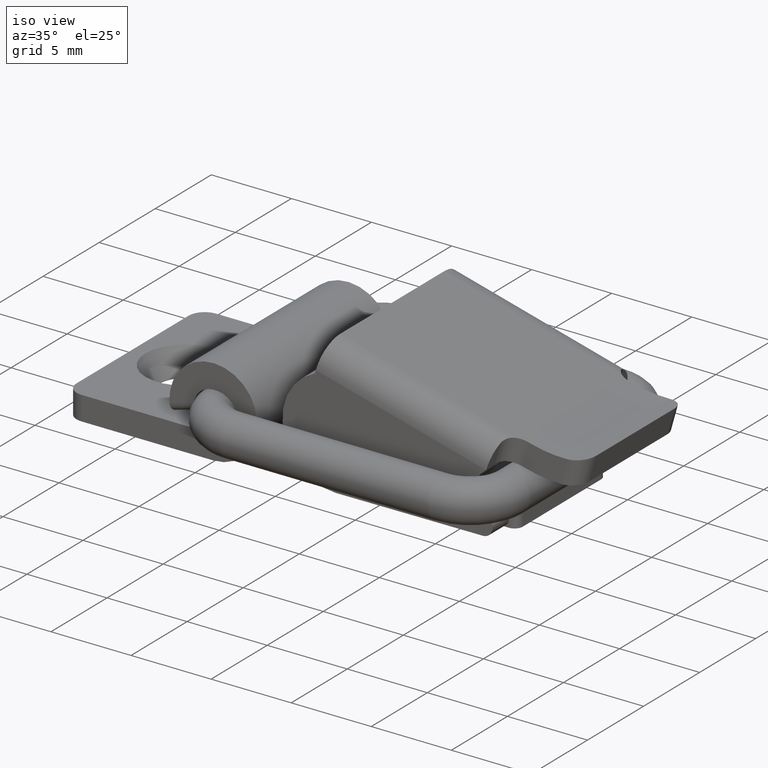
[diagram: clean part render]
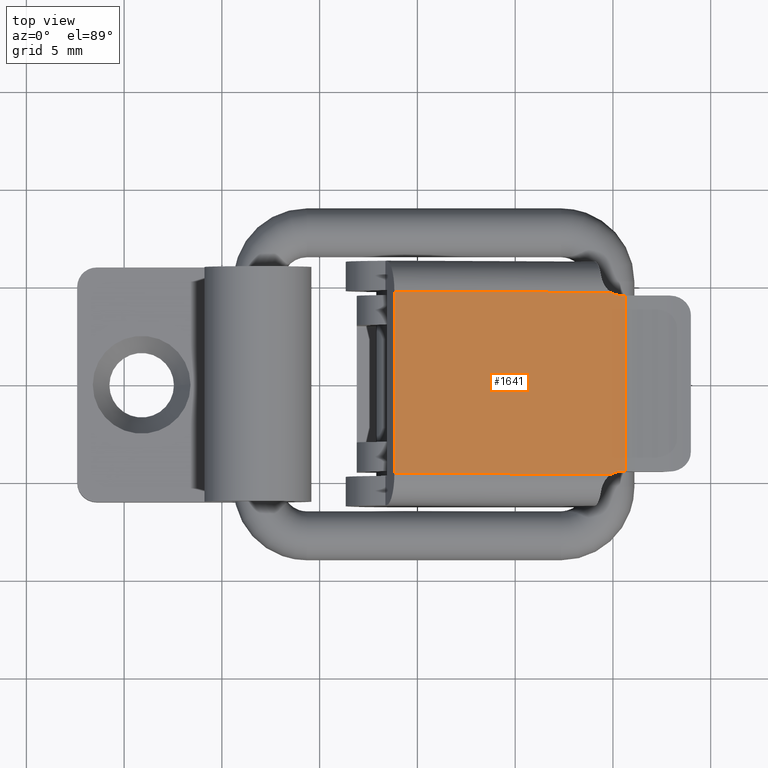
[diagram: tour spotlight — one face highlighted and labeled with its STEP entity id]
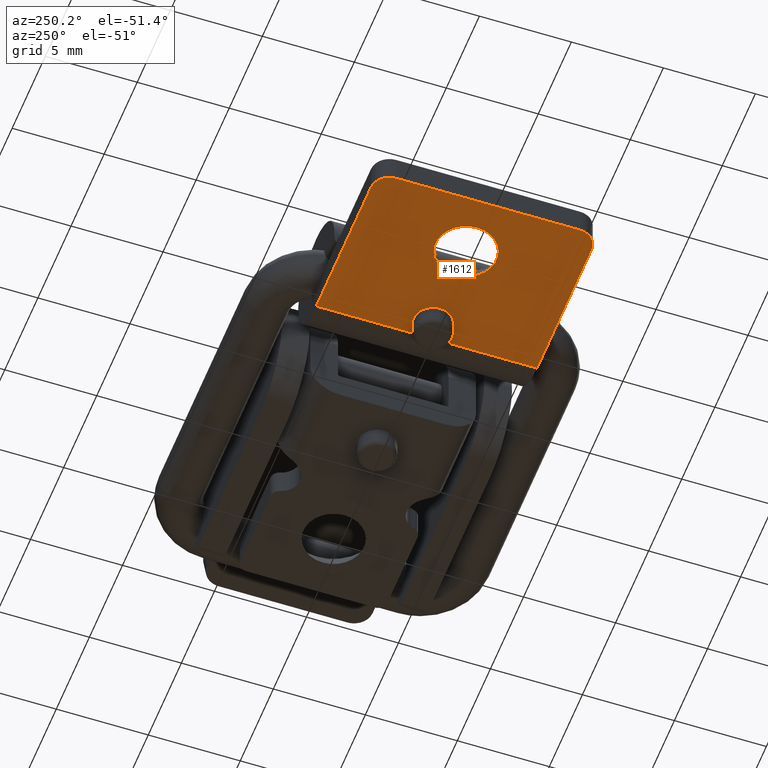
[diagram: tour spotlight — one face highlighted and labeled with its STEP entity id]
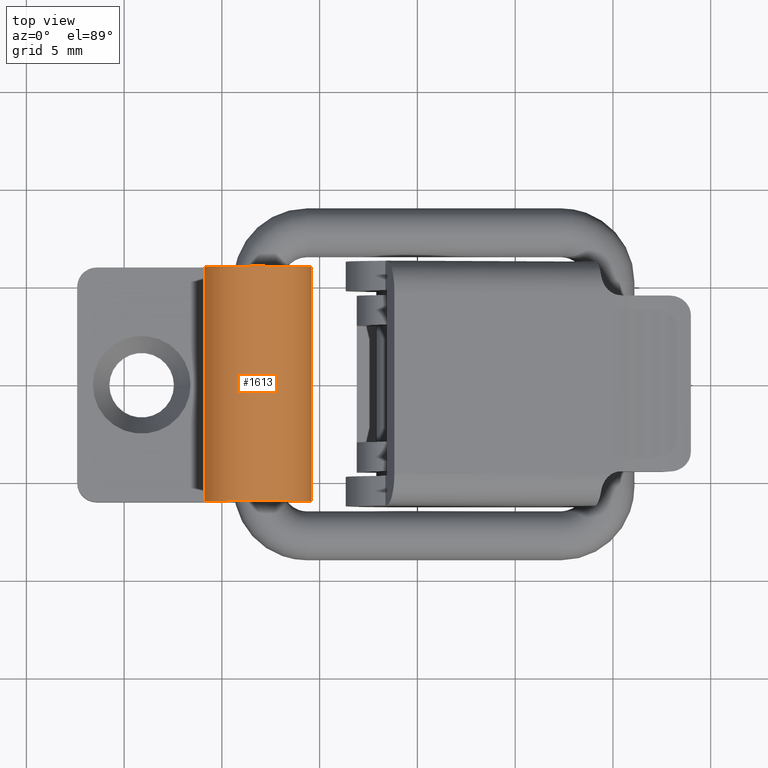
[diagram: tour spotlight — one face highlighted and labeled with its STEP entity id]
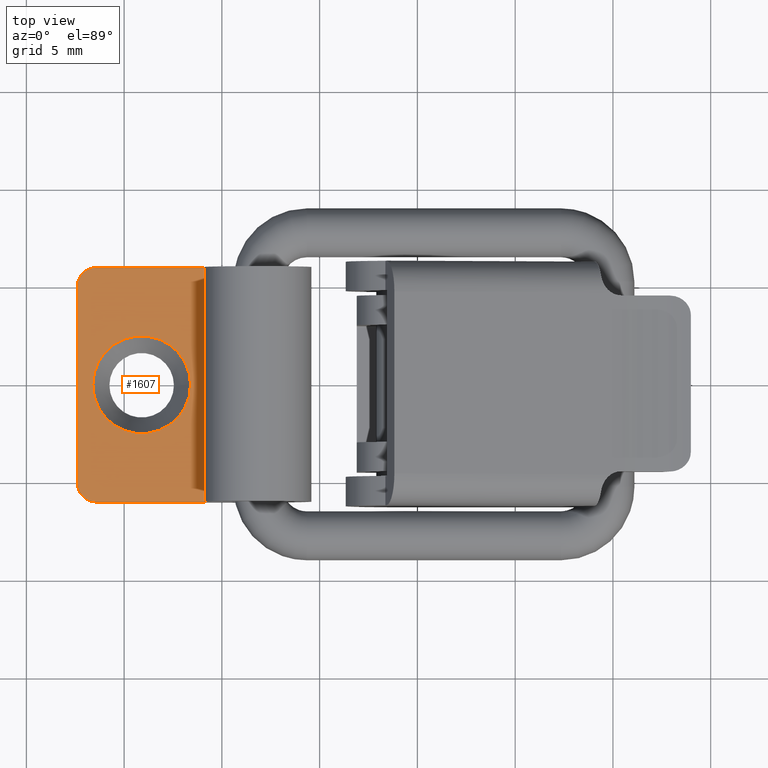
[diagram: tour spotlight — one face highlighted and labeled with its STEP entity id]
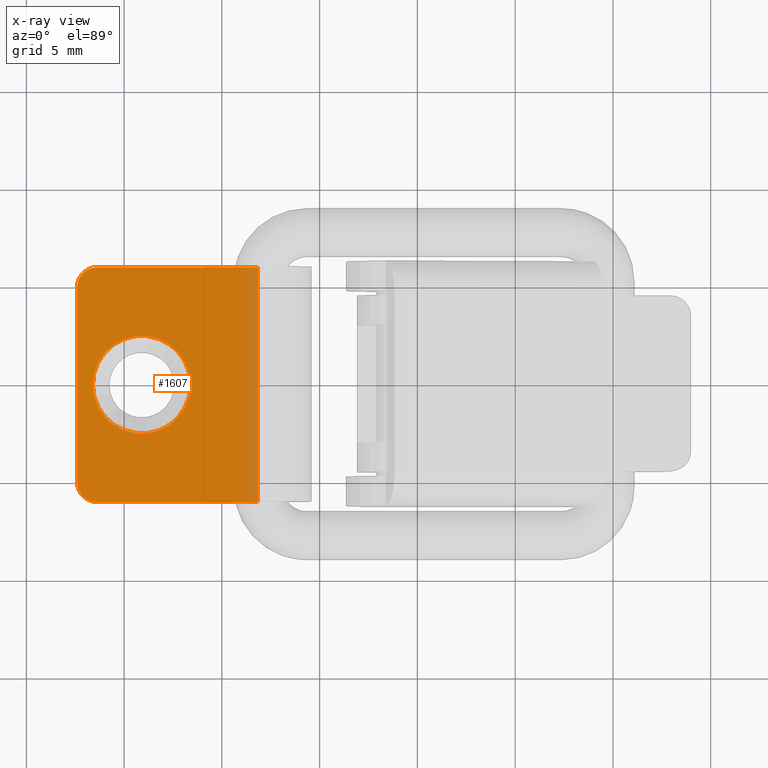
[diagram: x-ray of the same camera — body ghosted, this tour face saturated]
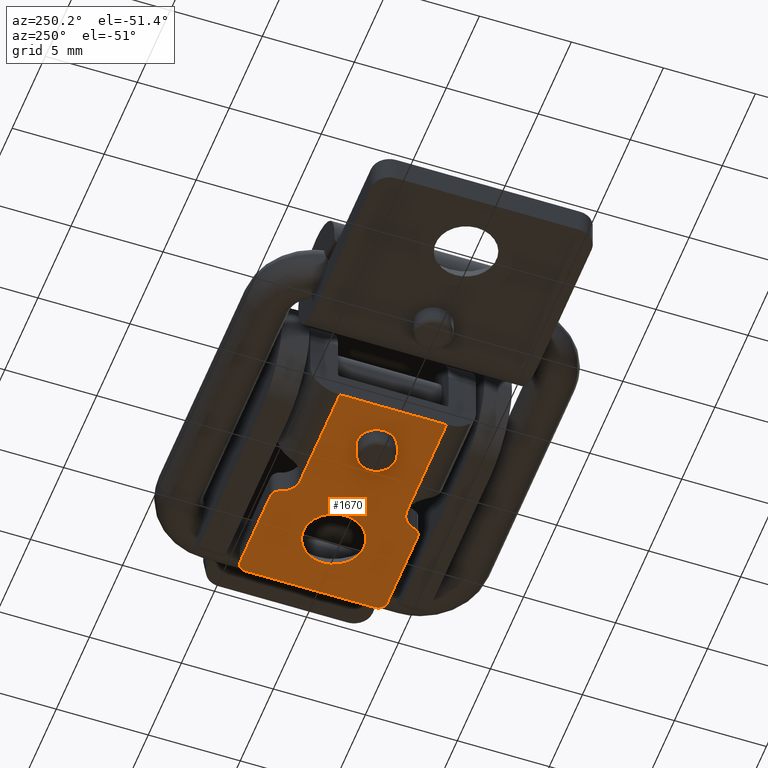
[diagram: tour spotlight — one face highlighted and labeled with its STEP entity id]
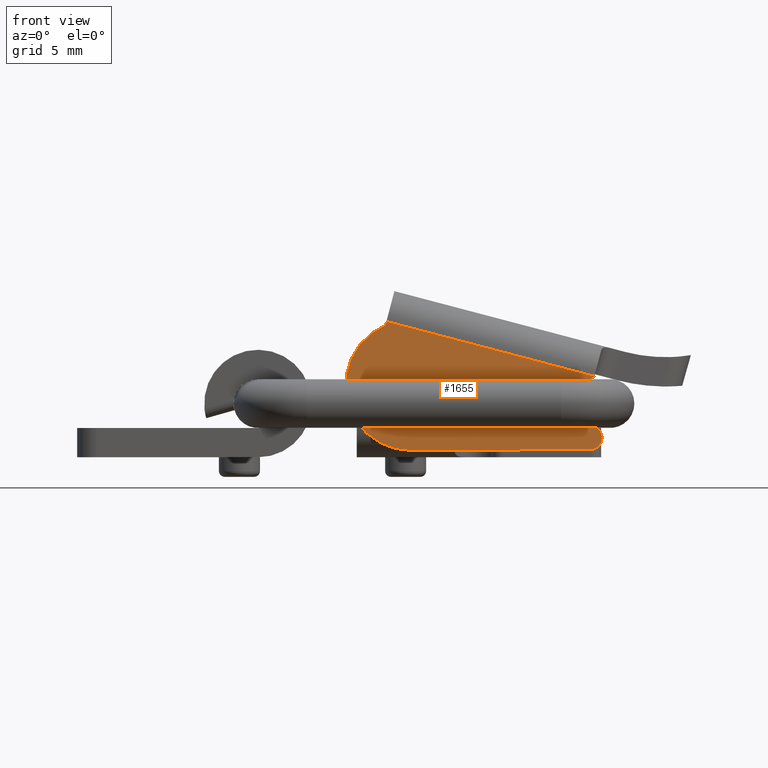
[diagram: tour spotlight — one face highlighted and labeled with its STEP entity id]
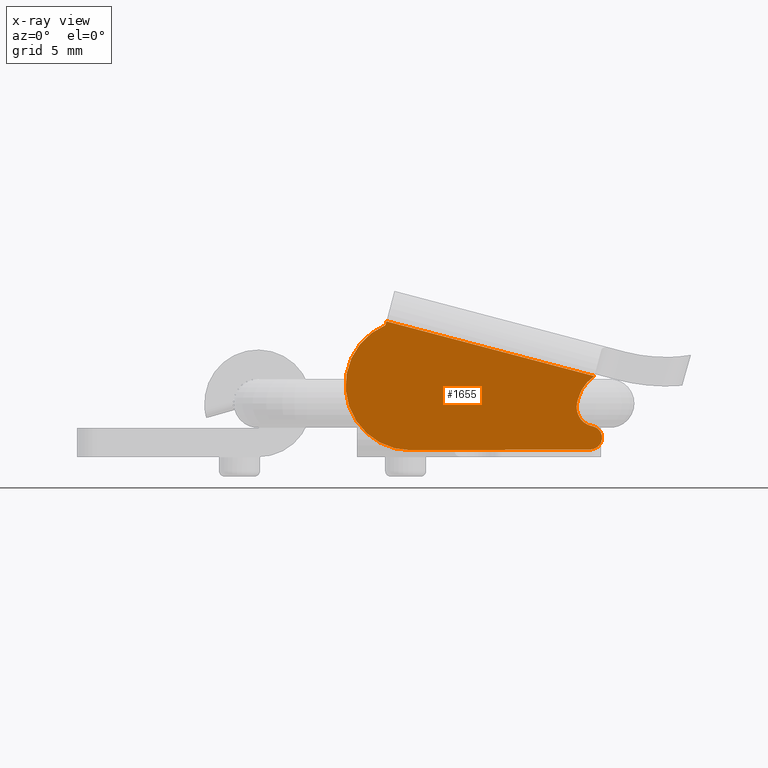
[diagram: x-ray of the same camera — body ghosted, this tour face saturated]
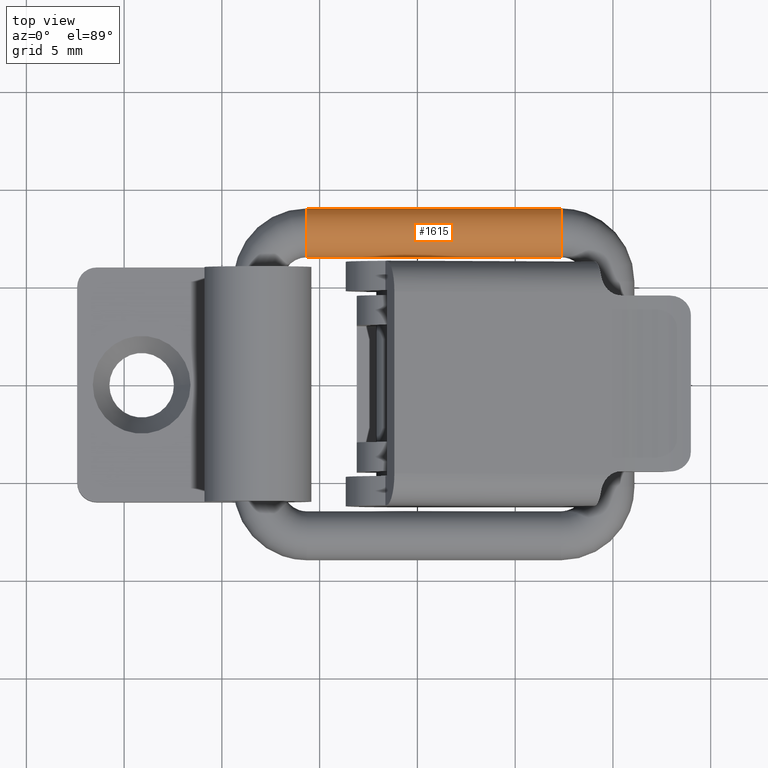
[diagram: tour spotlight — one face highlighted and labeled with its STEP entity id]
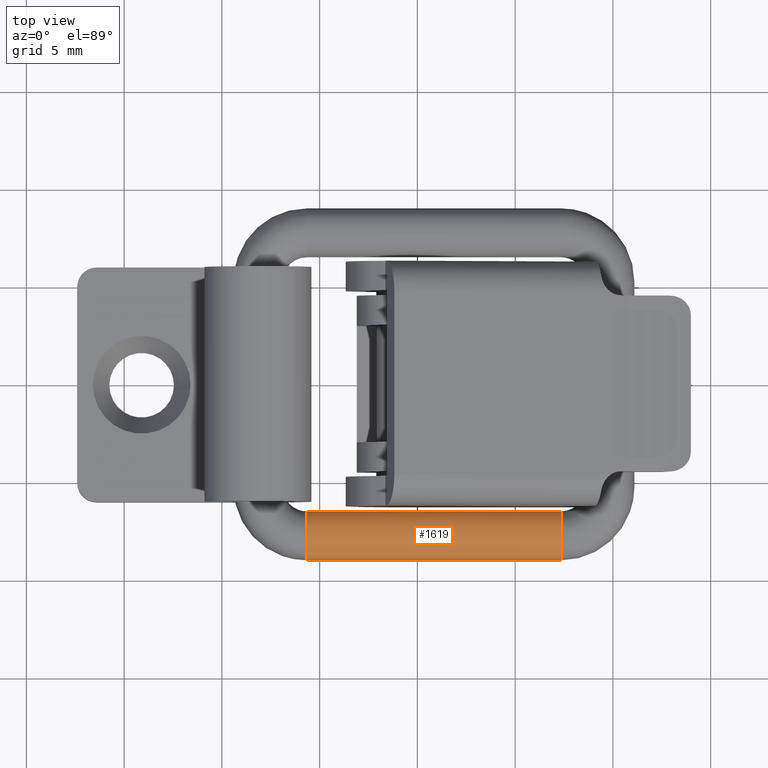
[diagram: tour spotlight — one face highlighted and labeled with its STEP entity id]
A machine part: a face-by-face anatomy tour. The part has 104 B-rep faces; the first image is the clean iso view, then the 8 largest visible faces are spotlighted one at a time (largest first), each with its STEP entity span.

Face 1 — top view, entity #1641. In plain terms, the highlighted planar face has unit normal (0.2547, -0, 0.967).
Definition (entity closure, byte-faithful):
#102=LINE('',#2687,#226);
#106=LINE('',#2720,#230);
#113=LINE('',#2777,#237);
#115=LINE('',#2781,#239);
#116=LINE('',#2783,#240);
#117=LINE('',#2784,#241);
#226=VECTOR('',#2104,9.);
#230=VECTOR('',#2116,0.200000000000008);
#237=VECTOR('',#2153,0.200000000000018);
#239=VECTOR('',#2157,11.4682519590572);
#240=VECTOR('',#2158,9.30619479163587);
#241=VECTOR('',#2159,11.4682519590573);
#371=PLANE('',#1800);
#476=FACE_OUTER_BOUND('',#594,.T.);
#594=EDGE_LOOP('',(#1326,#1327,#1328,#1329,#1330,#1331,#1332,#1333));
#706=CIRCLE('',#1788,0.999999999999999);
#711=CIRCLE('',#1795,1.);
#823=VERTEX_POINT('',#2684);
#824=VERTEX_POINT('',#2686);
#829=VERTEX_POINT('',#2718);
#831=VERTEX_POINT('',#2726);
#837=VERTEX_POINT('',#2753);
#838=VERTEX_POINT('',#2755);
#841=VERTEX_POINT('',#2780);
#842=VERTEX_POINT('',#2782);
#994=EDGE_CURVE('',#823,#824,#102,.T.);
#1002=EDGE_CURVE('',#829,#823,#106,.T.);
#1005=EDGE_CURVE('',#829,#831,#706,.F.);
#1014=EDGE_CURVE('',#837,#838,#711,.T.);
#1020=EDGE_CURVE('',#824,#837,#113,.T.);
#1022=EDGE_CURVE('',#831,#841,#115,.T.);
#1023=EDGE_CURVE('',#842,#841,#116,.T.);
#1024=EDGE_CURVE('',#842,#838,#117,.T.);
#1326=ORIENTED_EDGE('',*,*,#1022,.T.);
#1327=ORIENTED_EDGE('',*,*,#1023,.F.);
#1328=ORIENTED_EDGE('',*,*,#1024,.T.);
#1329=ORIENTED_EDGE('',*,*,#1014,.F.);
#1330=ORIENTED_EDGE('',*,*,#1020,.F.);
#1331=ORIENTED_EDGE('',*,*,#994,.F.);
#1332=ORIENTED_EDGE('',*,*,#1002,.F.);
#1333=ORIENTED_EDGE('',*,*,#1005,.T.);
#1641=ADVANCED_FACE('',(#476),#371,.T.);
#1788=AXIS2_PLACEMENT_3D('',#2727,#2124,#2125);
#1795=AXIS2_PLACEMENT_3D('',#2756,#2141,#2142);
#1800=AXIS2_PLACEMENT_3D('',#2779,#2155,#2156);
#2104=DIRECTION('',(0.,-1.,0.));
#2116=DIRECTION('',(1.,0.,0.));
#2124=DIRECTION('center_axis',(0.,0.,1.));
#2125=DIRECTION('ref_axis',(-1.,1.11022302462516E-15,5.55111512312579E-16));
#2141=DIRECTION('center_axis',(0.,0.,1.));
#2142=DIRECTION('ref_axis',(-1.,1.55431223447522E-14,5.55111512312578E-16));
#2153=DIRECTION('',(-1.,0.,0.));
#2155=DIRECTION('center_axis',(0.,0.,1.));
#2156=DIRECTION('ref_axis',(1.,0.,0.));
#2157=DIRECTION('',(-1.,2.01858731750029E-16,0.));
#2158=DIRECTION('',(0.,1.,0.));
#2159=DIRECTION('',(1.,1.4130111222502E-15,0.));
#2684=CARTESIAN_POINT('',(6.1,4.5,1.5));
#2686=CARTESIAN_POINT('',(6.1,-4.5,1.5));
#2687=CARTESIAN_POINT('',(6.1,4.5,1.5));
#2718=CARTESIAN_POINT('',(5.89999999999999,4.5,1.5));
#2720=CARTESIAN_POINT('',(4.89999999999999,4.5,1.5));
#2726=CARTESIAN_POINT('',(5.36825195905734,4.6530973958278,1.5));
#2727=CARTESIAN_POINT('Origin',(5.89999999999999,5.5,1.5));
#2753=CARTESIAN_POINT('',(5.89999999999998,-4.5,1.5));
#2755=CARTESIAN_POINT('',(5.36825195905736,-4.65309739582778,1.5));
#2756=CARTESIAN_POINT('Origin',(5.89999999999998,-5.5,1.5));
#2777=CARTESIAN_POINT('',(6.1,-4.5,1.5));
#2779=CARTESIAN_POINT('Origin',(5.47863206530747,-8.97784723465649,1.5));
#2780=CARTESIAN_POINT('',(-6.09999999999983,4.65309739581794,1.5));
#2781=CARTESIAN_POINT('',(5.18931603265373,4.65309739581794,1.5));
#2782=CARTESIAN_POINT('',(-6.09999999999998,-4.65309739581793,1.5));
#2783=CARTESIAN_POINT('',(-6.1,6.05,1.5));
#2784=CARTESIAN_POINT('',(-0.310683967346257,-4.65309739581793,1.5));

Face 2 — auxiliary view, entity #1612. In plain terms, the highlighted planar face has unit normal (-0, 0, -1).
Definition (entity closure, byte-faithful):
#64=LINE('',#2490,#188);
#69=LINE('',#2528,#193);
#75=LINE('',#2543,#199);
#77=LINE('',#2559,#201);
#78=LINE('',#2560,#202);
#188=VECTOR('',#1938,8.25);
#193=VECTOR('',#1955,8.25);
#199=VECTOR('',#1969,10.);
#201=VECTOR('',#1993,5.55278640450005);
#202=VECTOR('',#1994,5.55278640450005);
#361=PLANE('',#1737);
#408=FACE_BOUND('',#557,.T.);
#447=FACE_OUTER_BOUND('',#556,.T.);
#556=EDGE_LOOP('',(#1197,#1198,#1199,#1200,#1201,#1202,#1203,#1204));
#557=EDGE_LOOP('',(#1205));
#669=CIRCLE('',#1711,1.05);
#675=CIRCLE('',#1724,1.);
#679=CIRCLE('',#1731,1.);
#681=CIRCLE('',#1735,1.65);
#760=VERTEX_POINT('',#2449);
#761=VERTEX_POINT('',#2450);
#768=VERTEX_POINT('',#2487);
#769=VERTEX_POINT('',#2489);
#775=VERTEX_POINT('',#2525);
#776=VERTEX_POINT('',#2527);
#778=VERTEX_POINT('',#2533);
#781=VERTEX_POINT('',#2541);
#784=VERTEX_POINT('',#2554);
#911=EDGE_CURVE('',#760,#761,#669,.T.);
#921=EDGE_CURVE('',#768,#769,#64,.T.);
#931=EDGE_CURVE('',#775,#776,#69,.T.);
#934=EDGE_CURVE('',#778,#768,#675,.T.);
#939=EDGE_CURVE('',#778,#781,#75,.T.);
#942=EDGE_CURVE('',#776,#781,#679,.T.);
#944=EDGE_CURVE('',#784,#784,#681,.T.);
#946=EDGE_CURVE('',#761,#769,#77,.T.);
#947=EDGE_CURVE('',#775,#760,#78,.T.);
#1197=ORIENTED_EDGE('',*,*,#911,.T.);
#1198=ORIENTED_EDGE('',*,*,#946,.T.);
#1199=ORIENTED_EDGE('',*,*,#921,.F.);
#1200=ORIENTED_EDGE('',*,*,#934,.F.);
#1201=ORIENTED_EDGE('',*,*,#939,.T.);
#1202=ORIENTED_EDGE('',*,*,#942,.F.);
#1203=ORIENTED_EDGE('',*,*,#931,.F.);
#1204=ORIENTED_EDGE('',*,*,#947,.T.);
#1205=ORIENTED_EDGE('',*,*,#944,.T.);
#1612=ADVANCED_FACE('',(#447,#408),#361,.T.);
#1711=AXIS2_PLACEMENT_3D('',#2451,#1921,#1922);
#1724=AXIS2_PLACEMENT_3D('',#2534,#1960,#1961);
#1731=AXIS2_PLACEMENT_3D('',#2549,#1978,#1979);
#1735=AXIS2_PLACEMENT_3D('',#2555,#1986,#1987);
#1737=AXIS2_PLACEMENT_3D('',#2558,#1991,#1992);
#1921=DIRECTION('center_axis',(6.25371292798738E-21,1.,0.));
#1922=DIRECTION('ref_axis',(-1.,0.,0.));
#1938=DIRECTION('',(1.,-6.25371292798738E-21,0.));
#1955=DIRECTION('',(-1.,6.25371292798738E-21,0.));
#1960=DIRECTION('center_axis',(6.25371292798738E-21,1.,0.));
#1961=DIRECTION('ref_axis',(-0.707106781186548,0.,0.707106781186547));
#1969=DIRECTION('',(0.,0.,-1.));
#1978=DIRECTION('center_axis',(6.25371292798738E-21,1.,0.));
#1979=DIRECTION('ref_axis',(-0.707106781186548,0.,-0.707106781186547));
#1986=DIRECTION('center_axis',(6.25371292798738E-21,1.,0.));
#1987=DIRECTION('ref_axis',(1.,-1.69967494438815E-16,0.));
#1991=DIRECTION('center_axis',(-6.25371292798738E-21,-1.,0.));
#1992=DIRECTION('ref_axis',(1.,-6.25371292798738E-21,0.));
#1993=DIRECTION('',(0.,0.,1.));
#1994=DIRECTION('',(0.,0.,1.));
#2449=CARTESIAN_POINT('',(9.25,0.,-0.447213595499951));
#2450=CARTESIAN_POINT('',(9.25,0.,0.447213595499951));
#2451=CARTESIAN_POINT('Origin',(8.3,0.,0.));
#2487=CARTESIAN_POINT('',(1.,-6.25371292798738E-21,6.));
#2489=CARTESIAN_POINT('',(9.25,-5.78468445838833E-20,6.));
#2490=CARTESIAN_POINT('',(0.,0.,6.));
#2525=CARTESIAN_POINT('',(9.25,-5.78468445838833E-20,-6.));
#2527=CARTESIAN_POINT('',(1.,-6.25371292798738E-21,-6.));
#2528=CARTESIAN_POINT('',(0.,0.,-6.));
#2533=CARTESIAN_POINT('',(0.,0.,5.));
#2534=CARTESIAN_POINT('Origin',(1.,0.,5.));
#2541=CARTESIAN_POINT('',(0.,0.,-5.));
#2543=CARTESIAN_POINT('',(0.,0.,0.));
#2549=CARTESIAN_POINT('Origin',(1.,0.,-5.));
#2554=CARTESIAN_POINT('',(1.65,2.80446365824044E-16,2.02066721859313E-16));
#2555=CARTESIAN_POINT('Origin',(3.3,0.,0.));
#2558=CARTESIAN_POINT('Origin',(0.,0.,0.));
#2559=CARTESIAN_POINT('',(9.25,0.,0.));
#2560=CARTESIAN_POINT('',(9.25,0.,0.));

Face 3 — top view, entity #1613. In plain terms, the highlighted cylindrical surface (partial cylindrical patch) has radius 2.75 mm, axis along (0, -1, -0).
Definition (entity closure, byte-faithful):
#48=B_SPLINE_CURVE_WITH_KNOTS('',3,(#2471,#2472,#2473,#2474,#2475,#2476,
#2477,#2478,#2479,#2480),.UNSPECIFIED.,.F.,.F.,(4,2,2,2,4),(0.0767706745280909,
0.0957377000465498,0.114704725565009,0.133543229104475,0.152381732643942),
 .UNSPECIFIED.);
#50=B_SPLINE_CURVE_WITH_KNOTS('',3,(#2512,#2513,#2514,#2515,#2516,#2517,
#2518,#2519,#2520,#2521),.UNSPECIFIED.,.F.,.F.,(4,2,2,2,4),(0.304763465287883,
0.323601968827349,0.342440472366816,0.361407497885275,0.380374523403734),
 .UNSPECIFIED.);
#59=LINE('',#2454,#183);
#76=LINE('',#2557,#200);
#77=LINE('',#2559,#201);
#78=LINE('',#2560,#202);
#183=VECTOR('',#1927,0.894427190999902);
#200=VECTOR('',#1990,11.);
#201=VECTOR('',#1993,5.55278640450005);
#202=VECTOR('',#1994,5.55278640450005);
#314=CYLINDRICAL_SURFACE('',#1738,2.75);
#448=FACE_OUTER_BOUND('',#558,.T.);
#558=EDGE_LOOP('',(#1206,#1207,#1208,#1209,#1210,#1211,#1212,#1213));
#672=CIRCLE('',#1717,2.75);
#674=CIRCLE('',#1722,2.75);
#760=VERTEX_POINT('',#2449);
#761=VERTEX_POINT('',#2450);
#764=VERTEX_POINT('',#2468);
#765=VERTEX_POINT('',#2470);
#769=VERTEX_POINT('',#2489);
#773=VERTEX_POINT('',#2510);
#774=VERTEX_POINT('',#2511);
#775=VERTEX_POINT('',#2525);
#913=EDGE_CURVE('',#760,#761,#59,.T.);
#916=EDGE_CURVE('',#764,#765,#48,.T.);
#922=EDGE_CURVE('',#769,#764,#672,.T.);
#927=EDGE_CURVE('',#773,#774,#50,.T.);
#930=EDGE_CURVE('',#774,#775,#674,.T.);
#945=EDGE_CURVE('',#773,#765,#76,.T.);
#946=EDGE_CURVE('',#761,#769,#77,.T.);
#947=EDGE_CURVE('',#775,#760,#78,.T.);
#1206=ORIENTED_EDGE('',*,*,#916,.F.);
#1207=ORIENTED_EDGE('',*,*,#922,.F.);
#1208=ORIENTED_EDGE('',*,*,#946,.F.);
#1209=ORIENTED_EDGE('',*,*,#913,.F.);
#1210=ORIENTED_EDGE('',*,*,#947,.F.);
#1211=ORIENTED_EDGE('',*,*,#930,.F.);
#1212=ORIENTED_EDGE('',*,*,#927,.F.);
#1213=ORIENTED_EDGE('',*,*,#945,.T.);
#1613=ADVANCED_FACE('',(#448),#314,.T.);
#1717=AXIS2_PLACEMENT_3D('',#2491,#1939,#1940);
#1722=AXIS2_PLACEMENT_3D('',#2526,#1953,#1954);
#1738=AXIS2_PLACEMENT_3D('',#2561,#1995,#1996);
#1927=DIRECTION('',(0.,0.,1.));
#1939=DIRECTION('center_axis',(0.,0.,1.));
#1940=DIRECTION('ref_axis',(-0.890723542830246,-0.454545454545455,0.));
#1953=DIRECTION('center_axis',(0.,0.,-1.));
#1954=DIRECTION('ref_axis',(-0.890723542830246,-0.454545454545455,0.));
#1990=DIRECTION('',(0.,0.,1.));
#1993=DIRECTION('',(0.,0.,1.));
#1994=DIRECTION('',(0.,0.,1.));
#1995=DIRECTION('center_axis',(0.,0.,1.));
#1996=DIRECTION('ref_axis',(-0.890723542830246,-0.454545454545455,0.));
#2449=CARTESIAN_POINT('',(9.25,0.,-0.447213595499951));
#2450=CARTESIAN_POINT('',(9.25,0.,0.447213595499951));
#2454=CARTESIAN_POINT('',(9.25,0.,0.));
#2468=CARTESIAN_POINT('',(6.51198399613561,2.49354656839411,6.));
#2470=CARTESIAN_POINT('',(6.60424868893541,2.,5.5));
#2471=CARTESIAN_POINT('Ctrl Pts',(6.51198399613561,2.49354656839411,6.));
#2472=CARTESIAN_POINT('Ctrl Pts',(6.51787994617387,2.4305986660726,6.));
#2473=CARTESIAN_POINT('Ctrl Pts',(6.52656771340076,2.36364514729082,5.98767063874012));
#2474=CARTESIAN_POINT('Ctrl Pts',(6.54677546671875,2.24114774860172,5.93679155283717));
#2475=CARTESIAN_POINT('Ctrl Pts',(6.55817122777565,2.18558942311772,5.89822734678773));
#2476=CARTESIAN_POINT('Ctrl Pts',(6.57788760812646,2.09862470758109,5.80918214845664));
#2477=CARTESIAN_POINT('Ctrl Pts',(6.58749927554508,2.06134825711493,5.75296695007312));
#2478=CARTESIAN_POINT('Ctrl Pts',(6.60073872249317,2.01205283831684,5.62977292063407));
#2479=CARTESIAN_POINT('Ctrl Pts',(6.60424868893541,2.,5.56279501179822));
#2480=CARTESIAN_POINT('Ctrl Pts',(6.60424868893541,2.,5.5));
#2489=CARTESIAN_POINT('',(9.25,-5.78468445838833E-20,6.));
#2491=CARTESIAN_POINT('Origin',(9.25,2.75,6.));
#2510=CARTESIAN_POINT('',(6.60424868893541,2.,-5.5));
#2511=CARTESIAN_POINT('',(6.51198399613561,2.49354656839411,-6.));
#2512=CARTESIAN_POINT('Ctrl Pts',(6.60424868893541,2.,-5.5));
#2513=CARTESIAN_POINT('Ctrl Pts',(6.60424868893541,2.,-5.56279501179822));
#2514=CARTESIAN_POINT('Ctrl Pts',(6.60073872249317,2.01205283831684,-5.62977292063407));
#2515=CARTESIAN_POINT('Ctrl Pts',(6.58749927554508,2.06134825711493,-5.75296695007312));
#2516=CARTESIAN_POINT('Ctrl Pts',(6.57788760812646,2.09862470758109,-5.80918214845664));
#2517=CARTESIAN_POINT('Ctrl Pts',(6.55817122777565,2.18558942311772,-5.89822734678773));
#2518=CARTESIAN_POINT('Ctrl Pts',(6.54677546671875,2.24114774860172,-5.93679155283717));
#2519=CARTESIAN_POINT('Ctrl Pts',(6.52656771340076,2.36364514729082,-5.98767063874012));
#2520=CARTESIAN_POINT('Ctrl Pts',(6.51787994617387,2.4305986660726,-6.));
#2521=CARTESIAN_POINT('Ctrl Pts',(6.51198399613561,2.49354656839411,-6.));
#2525=CARTESIAN_POINT('',(9.25,-5.78468445838833E-20,-6.));
#2526=CARTESIAN_POINT('Origin',(9.25,2.75,-6.));
#2557=CARTESIAN_POINT('',(6.60424868893541,2.,0.));
#2559=CARTESIAN_POINT('',(9.25,0.,0.));
#2560=CARTESIAN_POINT('',(9.25,0.,0.));
#2561=CARTESIAN_POINT('Origin',(9.25,2.75,0.));

Face 4 — top view, entity #1607. An x-ray twin of the same camera follows (body ghosted, this face saturated) — the face is partly hidden behind the body. In plain terms, the highlighted planar face has unit normal (0, -0, 1).
Definition (entity closure, byte-faithful):
#62=LINE('',#2486,#186);
#66=LINE('',#2508,#190);
#71=LINE('',#2531,#195);
#73=LINE('',#2540,#197);
#186=VECTOR('',#1936,8.25);
#190=VECTOR('',#1946,12.);
#195=VECTOR('',#1957,8.25);
#197=VECTOR('',#1967,10.);
#359=PLANE('',#1727);
#405=FACE_BOUND('',#549,.T.);
#442=FACE_OUTER_BOUND('',#548,.T.);
#548=EDGE_LOOP('',(#1178,#1179,#1180,#1181,#1182,#1183));
#549=EDGE_LOOP('',(#1184));
#676=CIRCLE('',#1725,1.);
#677=CIRCLE('',#1728,1.);
#678=CIRCLE('',#1729,2.5);
#766=VERTEX_POINT('',#2483);
#767=VERTEX_POINT('',#2485);
#772=VERTEX_POINT('',#2506);
#777=VERTEX_POINT('',#2529);
#779=VERTEX_POINT('',#2535);
#780=VERTEX_POINT('',#2539);
#782=VERTEX_POINT('',#2546);
#919=EDGE_CURVE('',#766,#767,#62,.T.);
#926=EDGE_CURVE('',#766,#772,#66,.T.);
#933=EDGE_CURVE('',#777,#772,#71,.T.);
#935=EDGE_CURVE('',#767,#779,#676,.T.);
#937=EDGE_CURVE('',#780,#779,#73,.T.);
#940=EDGE_CURVE('',#780,#777,#677,.T.);
#941=EDGE_CURVE('',#782,#782,#678,.T.);
#1178=ORIENTED_EDGE('',*,*,#935,.F.);
#1179=ORIENTED_EDGE('',*,*,#919,.F.);
#1180=ORIENTED_EDGE('',*,*,#926,.T.);
#1181=ORIENTED_EDGE('',*,*,#933,.F.);
#1182=ORIENTED_EDGE('',*,*,#940,.F.);
#1183=ORIENTED_EDGE('',*,*,#937,.T.);
#1184=ORIENTED_EDGE('',*,*,#941,.T.);
#1607=ADVANCED_FACE('',(#442,#405),#359,.T.);
#1725=AXIS2_PLACEMENT_3D('',#2536,#1962,#1963);
#1727=AXIS2_PLACEMENT_3D('',#2544,#1970,#1971);
#1728=AXIS2_PLACEMENT_3D('',#2545,#1972,#1973);
#1729=AXIS2_PLACEMENT_3D('',#2547,#1974,#1975);
#1936=DIRECTION('',(-1.,1.69967494438815E-16,0.));
#1946=DIRECTION('',(0.,0.,-1.));
#1957=DIRECTION('',(1.,-2.44883762239819E-16,0.));
#1962=DIRECTION('center_axis',(-1.69967494438815E-16,-1.,0.));
#1963=DIRECTION('ref_axis',(-0.707106781186548,0.,0.707106781186547));
#1967=DIRECTION('',(0.,0.,1.));
#1970=DIRECTION('center_axis',(1.69967494438815E-16,1.,0.));
#1971=DIRECTION('ref_axis',(-1.,1.77635683940025E-16,0.));
#1972=DIRECTION('center_axis',(-1.69967494438815E-16,-1.,0.));
#1973=DIRECTION('ref_axis',(-0.707106781186548,0.,-0.707106781186547));
#1974=DIRECTION('center_axis',(-1.69967494438815E-16,-1.,0.));
#1975=DIRECTION('ref_axis',(1.,-1.69967494438815E-16,0.));
#2483=CARTESIAN_POINT('',(9.25,1.5,6.));
#2485=CARTESIAN_POINT('',(1.,1.5,6.));
#2486=CARTESIAN_POINT('',(11.6994897427832,1.5,6.));
#2506=CARTESIAN_POINT('',(9.25,1.5,-6.));
#2508=CARTESIAN_POINT('',(9.25,1.5,0.));
#2529=CARTESIAN_POINT('',(1.,1.5,-6.));
#2531=CARTESIAN_POINT('',(6.80051025721683,1.5,-6.));
#2535=CARTESIAN_POINT('',(0.,1.5,5.));
#2536=CARTESIAN_POINT('Origin',(1.,1.5,5.));
#2539=CARTESIAN_POINT('',(0.,1.5,-5.));
#2540=CARTESIAN_POINT('',(0.,1.5,0.));
#2544=CARTESIAN_POINT('Origin',(11.6994897427832,1.5,0.));
#2545=CARTESIAN_POINT('Origin',(1.,1.5,-5.));
#2546=CARTESIAN_POINT('',(5.8,1.5,0.));
#2547=CARTESIAN_POINT('Origin',(3.3,1.5,0.));

Face 5 — auxiliary view, entity #1670. In plain terms, the highlighted planar face has unit normal (-0, -0, -1).
Definition (entity closure, byte-faithful):
#139=LINE('',#2876,#263);
#142=LINE('',#2882,#266);
#143=LINE('',#2886,#267);
#144=LINE('',#2892,#268);
#145=LINE('',#2894,#269);
#146=LINE('',#2896,#270);
#263=VECTOR('',#2275,4.55517735016204);
#266=VECTOR('',#2280,7.);
#267=VECTOR('',#2283,4.55517735016204);
#268=VECTOR('',#2288,6.);
#269=VECTOR('',#2289,5.80619479163588);
#270=VECTOR('',#2290,6.00000000000001);
#386=PLANE('',#1848);
#422=FACE_BOUND('',#629,.T.);
#423=FACE_BOUND('',#630,.T.);
#505=FACE_OUTER_BOUND('',#628,.T.);
#628=EDGE_LOOP('',(#1443,#1444,#1445,#1446,#1447,#1448,#1449,#1450,#1451,
#1452,#1453,#1454));
#629=EDGE_LOOP('',(#1455));
#630=EDGE_LOOP('',(#1456));
#726=CIRCLE('',#1837,1.05);
#729=CIRCLE('',#1843,1.65);
#730=CIRCLE('',#1845,0.5);
#732=CIRCLE('',#1849,0.5);
#733=CIRCLE('',#1850,0.5);
#734=CIRCLE('',#1851,1.);
#735=CIRCLE('',#1852,1.);
#736=CIRCLE('',#1853,0.5);
#857=VERTEX_POINT('',#2854);
#860=VERTEX_POINT('',#2863);
#861=VERTEX_POINT('',#2866);
#862=VERTEX_POINT('',#2867);
#865=VERTEX_POINT('',#2875);
#867=VERTEX_POINT('',#2881);
#868=VERTEX_POINT('',#2883);
#869=VERTEX_POINT('',#2885);
#870=VERTEX_POINT('',#2887);
#871=VERTEX_POINT('',#2889);
#872=VERTEX_POINT('',#2891);
#873=VERTEX_POINT('',#2893);
#874=VERTEX_POINT('',#2895);
#875=VERTEX_POINT('',#2897);
#1056=EDGE_CURVE('',#857,#857,#726,.T.);
#1059=EDGE_CURVE('',#860,#860,#729,.T.);
#1060=EDGE_CURVE('',#861,#862,#730,.T.);
#1064=EDGE_CURVE('',#862,#865,#139,.T.);
#1067=EDGE_CURVE('',#867,#861,#142,.T.);
#1068=EDGE_CURVE('',#868,#867,#732,.T.);
#1069=EDGE_CURVE('',#869,#868,#143,.T.);
#1070=EDGE_CURVE('',#870,#869,#733,.T.);
#1071=EDGE_CURVE('',#871,#870,#734,.T.);
#1072=EDGE_CURVE('',#871,#872,#144,.T.);
#1073=EDGE_CURVE('',#873,#872,#145,.T.);
#1074=EDGE_CURVE('',#873,#874,#146,.T.);
#1075=EDGE_CURVE('',#875,#874,#735,.T.);
#1076=EDGE_CURVE('',#865,#875,#736,.T.);
#1443=ORIENTED_EDGE('',*,*,#1060,.F.);
#1444=ORIENTED_EDGE('',*,*,#1067,.F.);
#1445=ORIENTED_EDGE('',*,*,#1068,.F.);
#1446=ORIENTED_EDGE('',*,*,#1069,.F.);
#1447=ORIENTED_EDGE('',*,*,#1070,.F.);
#1448=ORIENTED_EDGE('',*,*,#1071,.F.);
#1449=ORIENTED_EDGE('',*,*,#1072,.T.);
#1450=ORIENTED_EDGE('',*,*,#1073,.F.);
#1451=ORIENTED_EDGE('',*,*,#1074,.T.);
#1452=ORIENTED_EDGE('',*,*,#1075,.F.);
#1453=ORIENTED_EDGE('',*,*,#1076,.F.);
#1454=ORIENTED_EDGE('',*,*,#1064,.F.);
#1455=ORIENTED_EDGE('',*,*,#1056,.T.);
#1456=ORIENTED_EDGE('',*,*,#1059,.T.);
#1670=ADVANCED_FACE('',(#505,#422,#423),#386,.T.);
#1837=AXIS2_PLACEMENT_3D('',#2855,#2251,#2252);
#1843=AXIS2_PLACEMENT_3D('',#2864,#2263,#2264);
#1845=AXIS2_PLACEMENT_3D('',#2868,#2267,#2268);
#1848=AXIS2_PLACEMENT_3D('',#2880,#2278,#2279);
#1849=AXIS2_PLACEMENT_3D('',#2884,#2281,#2282);
#1850=AXIS2_PLACEMENT_3D('',#2888,#2284,#2285);
#1851=AXIS2_PLACEMENT_3D('',#2890,#2286,#2287);
#1852=AXIS2_PLACEMENT_3D('',#2898,#2291,#2292);
#1853=AXIS2_PLACEMENT_3D('',#2899,#2293,#2294);
#2251=DIRECTION('center_axis',(0.,0.,-1.));
#2252=DIRECTION('ref_axis',(1.,0.,0.));
#2263=DIRECTION('center_axis',(0.,0.,-1.));
#2264=DIRECTION('ref_axis',(-1.,0.,0.));
#2267=DIRECTION('center_axis',(0.,0.,-1.));
#2268=DIRECTION('ref_axis',(0.707106781186548,-0.707106781186548,0.));
#2275=DIRECTION('',(-1.,0.,0.));
#2278=DIRECTION('center_axis',(0.,0.,1.));
#2279=DIRECTION('ref_axis',(1.,0.,0.));
#2280=DIRECTION('',(0.,-1.,0.));
#2281=DIRECTION('center_axis',(0.,0.,-1.));
#2282=DIRECTION('ref_axis',(0.707106781186548,0.707106781186547,0.));
#2283=DIRECTION('',(1.,0.,0.));
#2284=DIRECTION('center_axis',(0.,0.,-1.));
#2285=DIRECTION('ref_axis',(0.,-1.,0.));
#2286=DIRECTION('center_axis',(0.,0.,1.));
#2287=DIRECTION('ref_axis',(0.707106781186548,-0.707106781186547,0.));
#2288=DIRECTION('',(-1.,-6.66133814775094E-16,0.));
#2289=DIRECTION('',(7.40148683083437E-16,1.,0.));
#2290=DIRECTION('',(1.,0.,0.));
#2291=DIRECTION('center_axis',(0.,0.,1.));
#2292=DIRECTION('ref_axis',(0.707106781186548,0.707106781186547,0.));
#2293=DIRECTION('center_axis',(0.,0.,-1.));
#2294=DIRECTION('ref_axis',(0.,1.,0.));
#2854=CARTESIAN_POINT('',(-2.7,0.,1.5));
#2855=CARTESIAN_POINT('Origin',(-3.75,0.,1.5));
#2863=CARTESIAN_POINT('',(4.4,-2.02066721859313E-16,1.5));
#2864=CARTESIAN_POINT('Origin',(2.75,0.,1.5));
#2866=CARTESIAN_POINT('',(6.25,-3.5,1.5));
#2867=CARTESIAN_POINT('',(5.75,-4.,1.5));
#2868=CARTESIAN_POINT('Origin',(5.75,-3.5,1.5));
#2875=CARTESIAN_POINT('',(1.19482264983796,-4.,1.5));
#2876=CARTESIAN_POINT('',(1.25,-4.,1.5));
#2880=CARTESIAN_POINT('Origin',(-3.75,5.87587502168392,1.5));
#2881=CARTESIAN_POINT('',(6.25,3.5,1.5));
#2882=CARTESIAN_POINT('',(6.25,-4.,1.5));
#2883=CARTESIAN_POINT('',(5.75,4.,1.5));
#2884=CARTESIAN_POINT('Origin',(5.75,3.5,1.5));
#2885=CARTESIAN_POINT('',(1.19482264983796,4.,1.5));
#2886=CARTESIAN_POINT('',(6.25,4.,1.5));
#2887=CARTESIAN_POINT('',(0.713215099891976,3.63436579860598,1.5));
#2888=CARTESIAN_POINT('Origin',(1.19482264983796,3.5,1.5));
#2889=CARTESIAN_POINT('',(-0.250000000000004,2.90309739581794,1.5));
#2890=CARTESIAN_POINT('Origin',(-0.25,3.90309739581794,1.5));
#2891=CARTESIAN_POINT('',(-6.25,2.90309739581793,1.5));
#2892=CARTESIAN_POINT('',(-2.5,2.90309739581794,1.5));
#2893=CARTESIAN_POINT('',(-6.25000000000001,-2.90309739581795,1.5));
#2894=CARTESIAN_POINT('',(-6.25,6.5,1.5));
#2895=CARTESIAN_POINT('',(-0.250000000000003,-2.90309739581795,1.5));
#2896=CARTESIAN_POINT('',(-5.00000000000001,-2.90309739581795,1.5));
#2897=CARTESIAN_POINT('',(0.713215099891975,-3.63436579860598,1.5));
#2898=CARTESIAN_POINT('Origin',(-0.25,-3.90309739581795,1.5));
#2899=CARTESIAN_POINT('Origin',(1.19482264983796,-3.5,1.5));

Face 6 — front view, entity #1655. An x-ray twin of the same camera follows (body ghosted, this face saturated) — the face is partly hidden behind the body. In plain terms, the highlighted planar face has unit normal (0, -1, -0).
Definition (entity closure, byte-faithful):
#88=LINE('',#2617,#212);
#131=LINE('',#2824,#255);
#132=LINE('',#2827,#256);
#133=LINE('',#2831,#257);
#212=VECTOR('',#2058,0.173474972221287);
#255=VECTOR('',#2211,11.);
#256=VECTOR('',#2214,0.203097395817931);
#257=VECTOR('',#2217,9.17734519377148);
#379=PLANE('',#1820);
#490=FACE_OUTER_BOUND('',#608,.T.);
#608=EDGE_LOOP('',(#1398,#1399,#1400,#1401,#1402,#1403,#1404,#1405));
#692=CIRCLE('',#1762,0.999999999999999);
#694=CIRCLE('',#1766,2.);
#720=CIRCLE('',#1821,3.32903819967745);
#721=CIRCLE('',#1822,0.6);
#799=VERTEX_POINT('',#2604);
#800=VERTEX_POINT('',#2605);
#804=VERTEX_POINT('',#2615);
#805=VERTEX_POINT('',#2619);
#849=VERTEX_POINT('',#2818);
#850=VERTEX_POINT('',#2826);
#851=VERTEX_POINT('',#2828);
#852=VERTEX_POINT('',#2830);
#963=EDGE_CURVE('',#799,#800,#692,.F.);
#969=EDGE_CURVE('',#800,#804,#88,.T.);
#970=EDGE_CURVE('',#804,#805,#694,.F.);
#1044=EDGE_CURVE('',#805,#849,#131,.T.);
#1045=EDGE_CURVE('',#850,#849,#132,.T.);
#1046=EDGE_CURVE('',#851,#850,#720,.T.);
#1047=EDGE_CURVE('',#852,#851,#133,.T.);
#1048=EDGE_CURVE('',#799,#852,#721,.T.);
#1398=ORIENTED_EDGE('',*,*,#969,.T.);
#1399=ORIENTED_EDGE('',*,*,#970,.T.);
#1400=ORIENTED_EDGE('',*,*,#1044,.T.);
#1401=ORIENTED_EDGE('',*,*,#1045,.F.);
#1402=ORIENTED_EDGE('',*,*,#1046,.F.);
#1403=ORIENTED_EDGE('',*,*,#1047,.F.);
#1404=ORIENTED_EDGE('',*,*,#1048,.F.);
#1405=ORIENTED_EDGE('',*,*,#963,.T.);
#1655=ADVANCED_FACE('',(#490),#379,.T.);
#1762=AXIS2_PLACEMENT_3D('',#2606,#2048,#2049);
#1766=AXIS2_PLACEMENT_3D('',#2620,#2061,#2062);
#1820=AXIS2_PLACEMENT_3D('',#2825,#2212,#2213);
#1821=AXIS2_PLACEMENT_3D('',#2829,#2215,#2216);
#1822=AXIS2_PLACEMENT_3D('',#2832,#2218,#2219);
#2048=DIRECTION('center_axis',(1.4130111222502E-15,-1.,2.22044604925029E-16));
#2049=DIRECTION('ref_axis',(1.,1.66533453693774E-15,-2.19269047363469E-14));
#2058=DIRECTION('',(2.18658249192015E-14,2.2204460492506E-16,1.));
#2061=DIRECTION('center_axis',(1.4130111222502E-15,-1.,2.22044604925029E-16));
#2062=DIRECTION('ref_axis',(-0.745343647378048,-8.32667268468867E-16,0.666680468675353));
#2211=DIRECTION('',(-1.,-1.4130111222502E-15,0.));
#2212=DIRECTION('center_axis',(1.4130111222502E-15,-1.,2.22044604925029E-16));
#2213=DIRECTION('ref_axis',(1.,1.4210854715202E-15,-1.4210854715202E-15));
#2214=DIRECTION('',(1.4130111222502E-15,2.22044604925031E-16,1.));
#2215=DIRECTION('center_axis',(-1.4130111222502E-15,1.,-2.22044604925029E-16));
#2216=DIRECTION('ref_axis',(-0.609496820995934,-6.85191375046101E-16,0.792788512275405));
#2217=DIRECTION('',(-0.965925826289069,-1.42233330843203E-15,-0.258819045102518));
#2218=DIRECTION('center_axis',(-1.4130111222502E-15,1.,-2.22044604925029E-16));
#2219=DIRECTION('ref_axis',(1.,1.4130111222502E-15,-1.4130111222502E-15));
#2604=CARTESIAN_POINT('',(5.45900773553352,-6.25309739581792,-2.60449933847572));
#2605=CARTESIAN_POINT('',(4.39068729475609,-6.25309739581792,-1.60683590957195));
#2606=CARTESIAN_POINT('Origin',(5.39068729475609,-6.25309739581792,-1.60683590957197));
#2615=CARTESIAN_POINT('',(4.39068729475609,-6.25309739581792,-1.43336093735066));
#2617=CARTESIAN_POINT('',(4.39068729475606,-6.25309739581792,-2.96640657251745));
#2619=CARTESIAN_POINT('',(4.9,-6.25309739581792,-0.1));
#2620=CARTESIAN_POINT('Origin',(6.39068729475609,-6.25309739581792,-1.43336093735071));
#2818=CARTESIAN_POINT('',(-6.1,-6.25309739581794,-0.1));
#2824=CARTESIAN_POINT('',(5.18931603265373,-6.25309739581792,-0.100000000000001));
#2825=CARTESIAN_POINT('Origin',(5.47863206530747,-6.25309739581792,-3.23094463047445));
#2826=CARTESIAN_POINT('',(-6.1,-6.25309739581794,-0.303097395817931));
#2827=CARTESIAN_POINT('',(-6.09999999999998,-6.25309739581793,11.7969026041821));
#2828=CARTESIAN_POINT('',(-3.20934331237225,-6.25309739581793,-6.15792461121952));
#2829=CARTESIAN_POINT('Origin',(-4.07096180032257,-6.25309739581793,-2.94232063744821));
#2830=CARTESIAN_POINT('',(5.65529142706149,-6.25309739581792,-3.7826528915914));
#2831=CARTESIAN_POINT('',(-3.20934331237225,-6.25309739581793,-6.15792461121952));
#2832=CARTESIAN_POINT('Origin',(5.49999999999998,-6.25309739581792,-3.20309739581796));

Face 7 — top view, entity #1615. In plain terms, the highlighted cylindrical surface (bore or boss wall) has radius 1.25 mm, axis along (-1, 0, 0).
Definition (entity closure, byte-faithful):
#315=CYLINDRICAL_SURFACE('',#1743,1.25);
#410=FACE_BOUND('',#562,.T.);
#450=FACE_OUTER_BOUND('',#561,.T.);
#561=EDGE_LOOP('',(#1216));
#562=EDGE_LOOP('',(#1217));
#683=CIRCLE('',#1742,1.25);
#684=CIRCLE('',#1744,1.25);
#786=VERTEX_POINT('',#2566);
#787=VERTEX_POINT('',#2569);
#949=EDGE_CURVE('',#786,#786,#683,.T.);
#950=EDGE_CURVE('',#787,#787,#684,.T.);
#1216=ORIENTED_EDGE('',*,*,#949,.F.);
#1217=ORIENTED_EDGE('',*,*,#950,.T.);
#1615=ADVANCED_FACE('',(#450,#410),#315,.T.);
#1742=AXIS2_PLACEMENT_3D('',#2567,#2003,#2004);
#1743=AXIS2_PLACEMENT_3D('',#2568,#2005,#2006);
#1744=AXIS2_PLACEMENT_3D('',#2570,#2007,#2008);
#2003=DIRECTION('center_axis',(2.6039218997796E-16,-1.,0.));
#2004=DIRECTION('ref_axis',(-1.,-2.6039218997796E-16,0.));
#2005=DIRECTION('center_axis',(-3.41607084500048E-16,-1.,0.));
#2006=DIRECTION('ref_axis',(-1.,3.41607084500048E-16,0.));
#2007=DIRECTION('center_axis',(2.6039218997796E-16,-1.,0.));
#2008=DIRECTION('ref_axis',(-1.,-2.6039218997796E-16,0.));
#2566=CARTESIAN_POINT('',(-6.50000000000001,2.5,1.53080849893419E-16));
#2567=CARTESIAN_POINT('Origin',(-7.75000000000001,2.5,0.));
#2568=CARTESIAN_POINT('Origin',(-7.75,15.5,0.));
#2569=CARTESIAN_POINT('',(-6.5,15.5,1.53080849893419E-16));
#2570=CARTESIAN_POINT('Origin',(-7.75,15.5,0.));

Face 8 — top view, entity #1619. In plain terms, the highlighted cylindrical surface (bore or boss wall) has radius 1.25 mm, axis along (1, 0, -0).
Definition (entity closure, byte-faithful):
#317=CYLINDRICAL_SURFACE('',#1751,1.25);
#414=FACE_BOUND('',#570,.T.);
#454=FACE_OUTER_BOUND('',#569,.T.);
#569=EDGE_LOOP('',(#1224));
#570=EDGE_LOOP('',(#1225));
#687=CIRCLE('',#1750,1.25);
#688=CIRCLE('',#1752,1.25);
#790=VERTEX_POINT('',#2578);
#791=VERTEX_POINT('',#2581);
#953=EDGE_CURVE('',#790,#790,#687,.T.);
#954=EDGE_CURVE('',#791,#791,#688,.T.);
#1224=ORIENTED_EDGE('',*,*,#953,.F.);
#1225=ORIENTED_EDGE('',*,*,#954,.T.);
#1619=ADVANCED_FACE('',(#454,#414),#317,.T.);
#1750=AXIS2_PLACEMENT_3D('',#2579,#2019,#2020);
#1751=AXIS2_PLACEMENT_3D('',#2580,#2021,#2022);
#1752=AXIS2_PLACEMENT_3D('',#2582,#2023,#2024);
#2019=DIRECTION('center_axis',(-3.82856869892695E-16,1.,0.));
#2020=DIRECTION('ref_axis',(1.,3.82856869892695E-16,0.));
#2021=DIRECTION('center_axis',(-1.70803542250024E-16,1.,0.));
#2022=DIRECTION('ref_axis',(1.,1.70803542250024E-16,0.));
#2023=DIRECTION('center_axis',(-3.82856869892695E-16,1.,0.));
#2024=DIRECTION('ref_axis',(1.,3.82856869892695E-16,0.));
#2578=CARTESIAN_POINT('',(6.5,15.5,1.53080849893419E-16));
#2579=CARTESIAN_POINT('Origin',(7.75,15.5,0.));
#2580=CARTESIAN_POINT('Origin',(7.75000000000001,2.5,0.));
#2581=CARTESIAN_POINT('',(6.50000000000001,2.5,1.53080849893419E-16));
#2582=CARTESIAN_POINT('Origin',(7.75000000000001,2.5,0.));